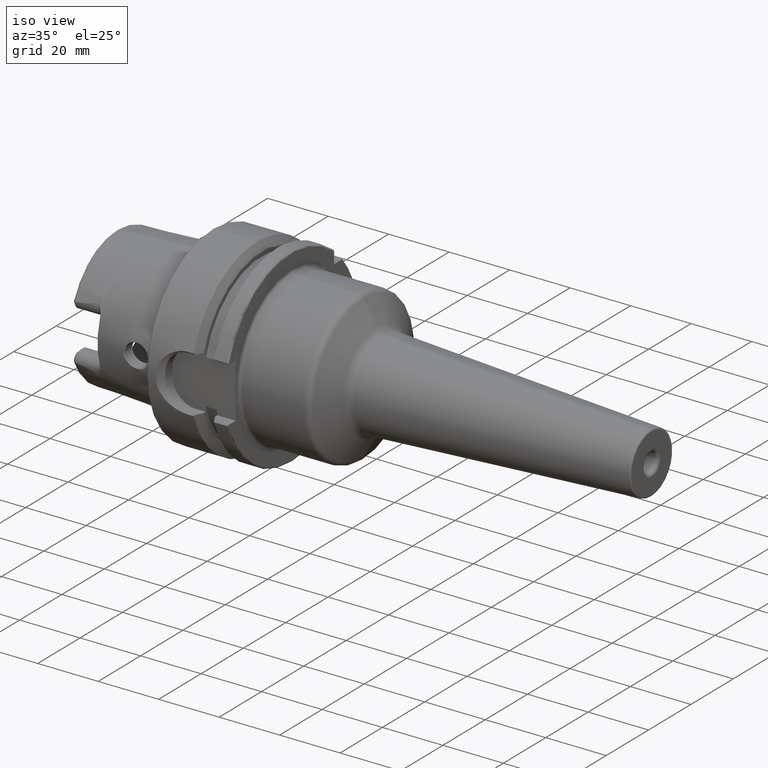
[diagram: clean part render]
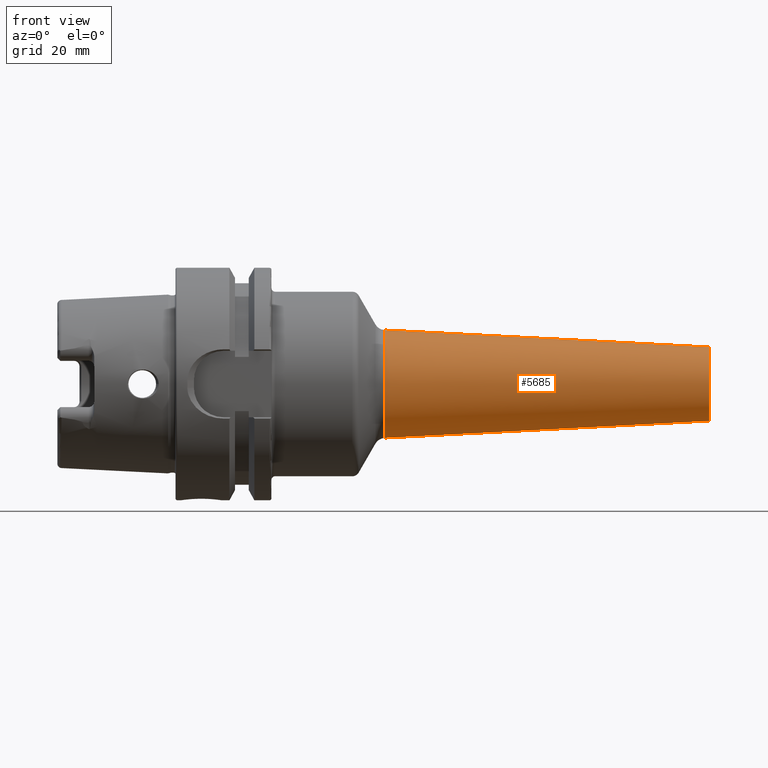
[diagram: tour spotlight — one face highlighted and labeled with its STEP entity id]
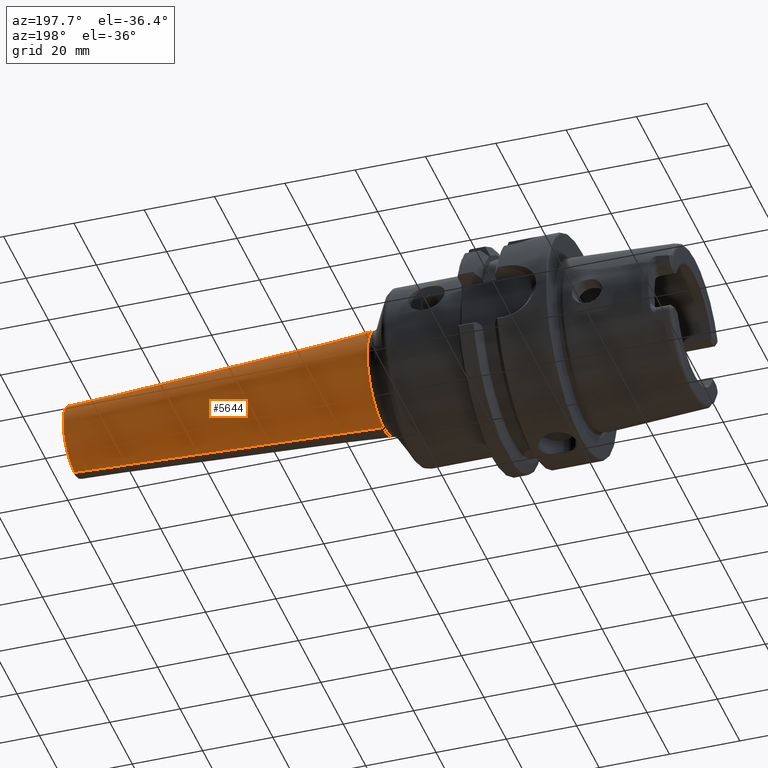
[diagram: tour spotlight — one face highlighted and labeled with its STEP entity id]
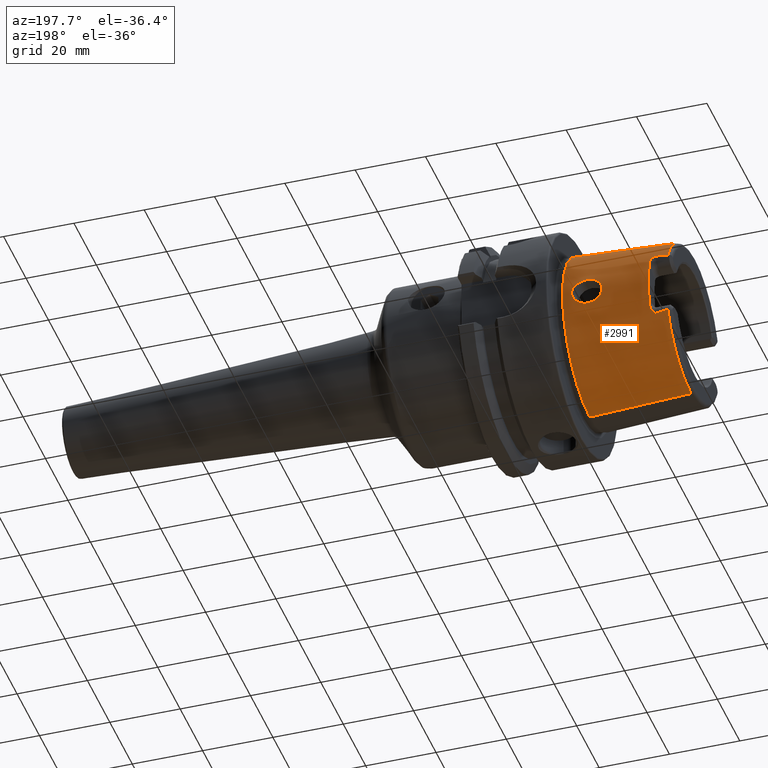
[diagram: tour spotlight — one face highlighted and labeled with its STEP entity id]
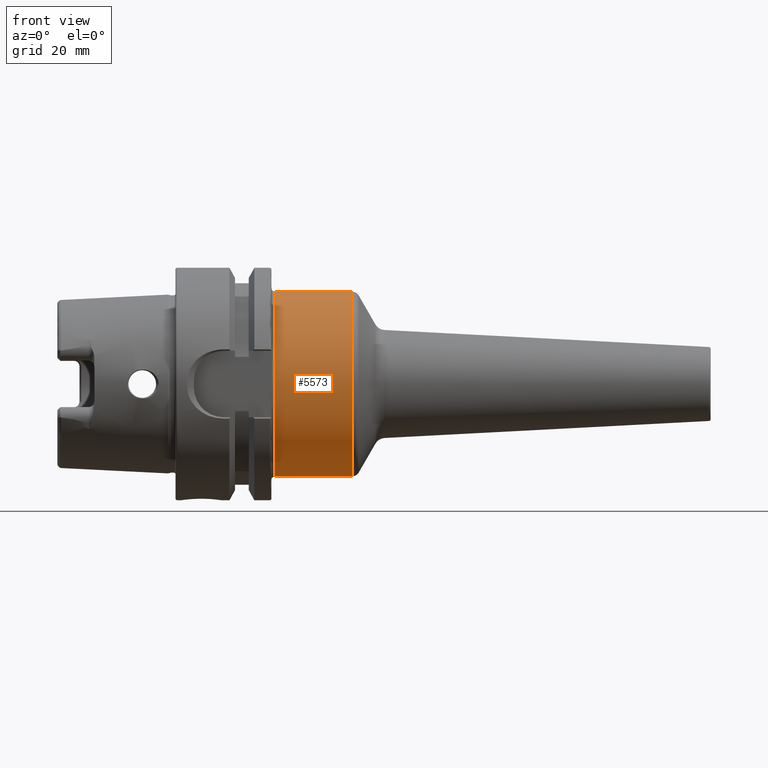
[diagram: tour spotlight — one face highlighted and labeled with its STEP entity id]
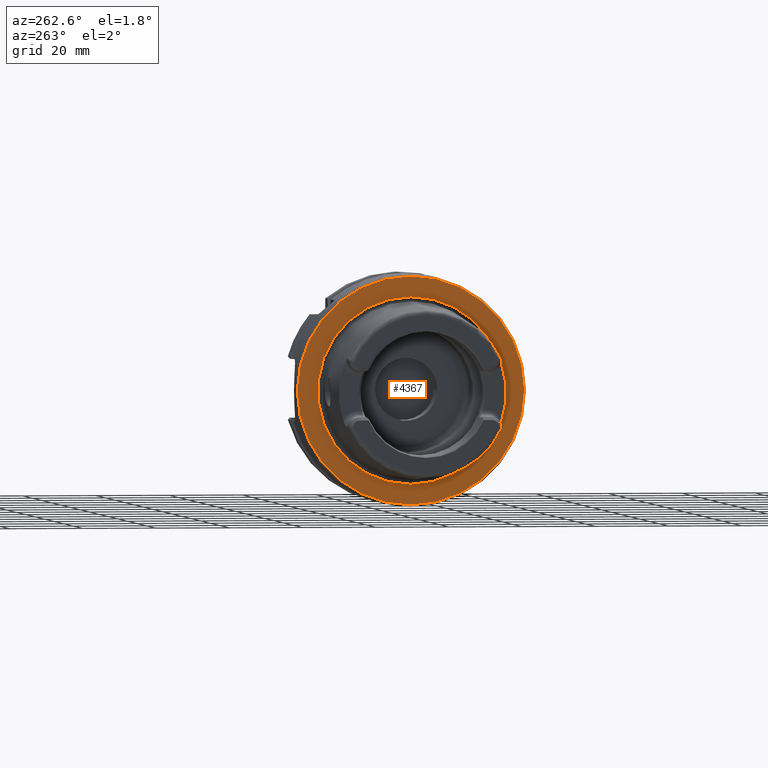
[diagram: tour spotlight — one face highlighted and labeled with its STEP entity id]
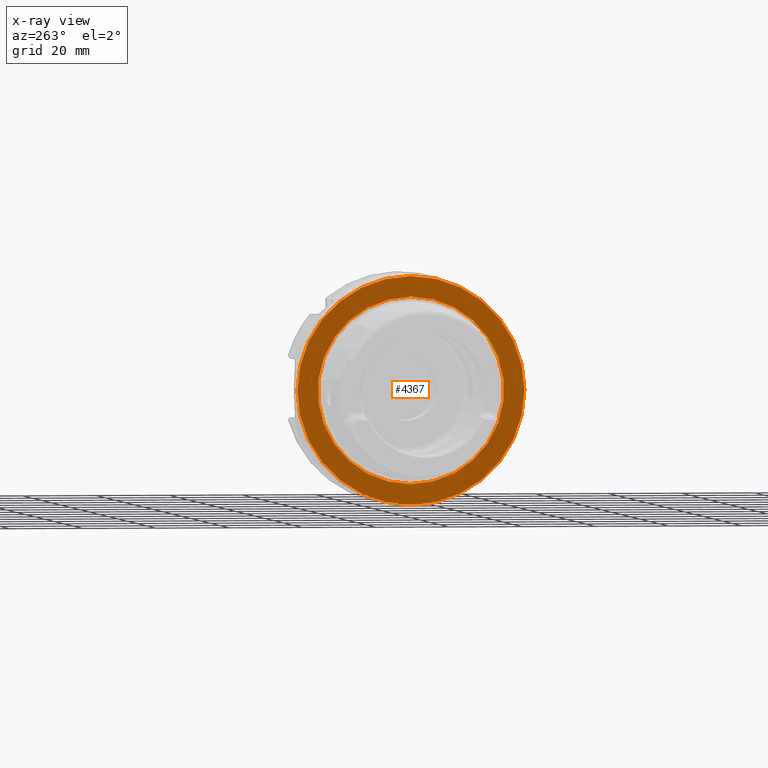
[diagram: x-ray of the same camera — body ghosted, this tour face saturated]
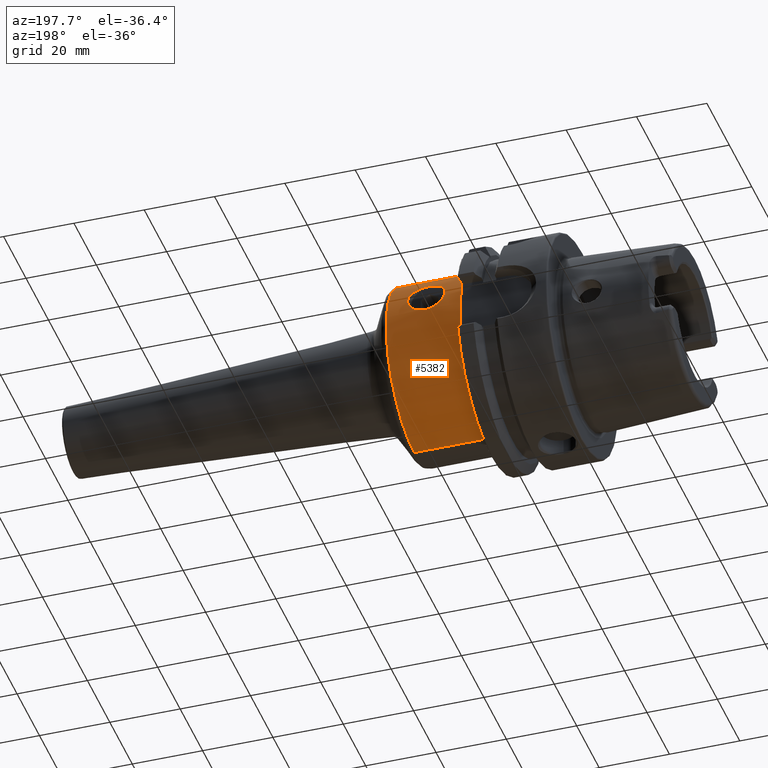
[diagram: tour spotlight — one face highlighted and labeled with its STEP entity id]
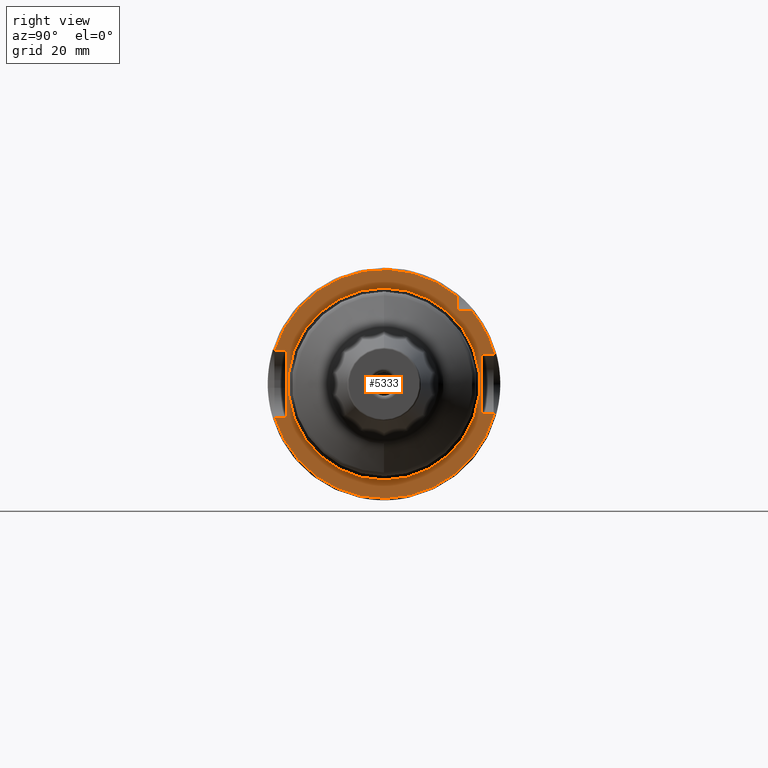
[diagram: tour spotlight — one face highlighted and labeled with its STEP entity id]
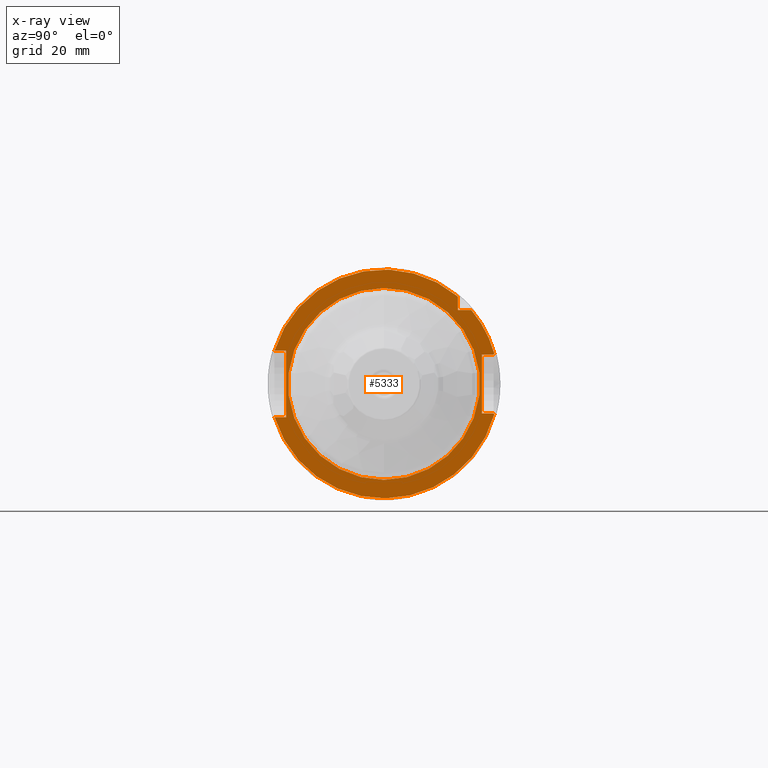
[diagram: x-ray of the same camera — body ghosted, this tour face saturated]
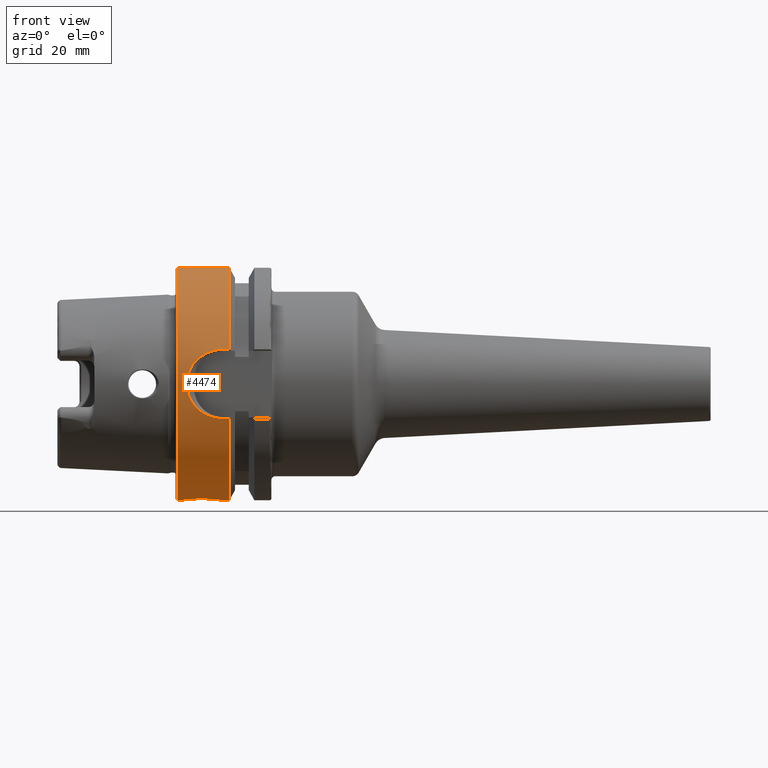
[diagram: tour spotlight — one face highlighted and labeled with its STEP entity id]
A machine part: a face-by-face anatomy tour. The part has 178 B-rep faces; the first image is the clean iso view, then the 8 largest visible faces are spotlighted one at a time (largest first), each with its STEP entity span.

Face 1 — front view, entity #5685. In plain terms, the highlighted conical surface has half-angle 3 deg.
Definition (entity closure, byte-faithful):
#2384=CARTESIAN_POINT('',(1.445261679781E2,0.E0,0.E0));
#2385=DIRECTION('',(-1.E0,0.E0,0.E0));
#2386=DIRECTION('',(0.E0,0.E0,-1.E0));
#2387=AXIS2_PLACEMENT_3D('',#2384,#2385,#2386);
#2389=DIRECTION('',(-9.986295347546E-1,1.666765421369E-12,-5.233595624294E-2));
#2390=VECTOR('',#2389,8.802016175758E1);
#2391=CARTESIAN_POINT('',(1.445261679782E2,-1.503512906937E-10,
-1.002483248402E1));
#2392=LINE('',#2391,#2390);
#2393=CARTESIAN_POINT('',(5.662663479317E1,0.E0,0.E0));
#2394=DIRECTION('',(1.E0,0.E0,0.E0));
#2395=DIRECTION('',(0.E0,0.E0,1.E0));
#2396=AXIS2_PLACEMENT_3D('',#2393,#2394,#2395);
#2398=DIRECTION('',(-9.986295347546E-1,-1.666767408512E-12,5.233595624294E-2));
#2399=VECTOR('',#2398,8.802016175758E1);
#2400=CARTESIAN_POINT('',(1.445261679782E2,1.503509898878E-10,
1.002483248402E1));
#2401=LINE('',#2400,#2399);
#2946=CARTESIAN_POINT('',(5.662663479317E1,0.E0,1.463145181826E1));
#2947=CARTESIAN_POINT('',(5.662663479317E1,0.E0,-1.463145181826E1));
#2948=VERTEX_POINT('',#2946);
#2949=VERTEX_POINT('',#2947);
#2950=CARTESIAN_POINT('',(1.445261679781E2,0.E0,-1.002483248402E1));
#2951=CARTESIAN_POINT('',(1.445261679781E2,0.E0,1.002483248402E1));
#2952=VERTEX_POINT('',#2950);
#2953=VERTEX_POINT('',#2951);
#5674=CARTESIAN_POINT('',(1.005764013856E2,0.E0,0.E0));
#5675=DIRECTION('',(-1.E0,0.E0,0.E0));
#5676=DIRECTION('',(0.E0,0.E0,-1.E0));
#5677=AXIS2_PLACEMENT_3D('',#5674,#5675,#5676);
#5678=CONICAL_SURFACE('',#5677,1.232814215114E1,3.E0);
#5679=ORIENTED_EDGE('',*,*,#5665,.F.);
#5680=ORIENTED_EDGE('',*,*,#5640,.T.);
#5681=ORIENTED_EDGE('',*,*,#5597,.F.);
#5682=ORIENTED_EDGE('',*,*,#5637,.F.);
#5683=EDGE_LOOP('',(#5679,#5680,#5681,#5682));
#5684=FACE_OUTER_BOUND('',#5683,.F.);
#5685=ADVANCED_FACE('',(#5684),#5678,.T.);
#2388=CIRCLE('',#2387,1.002483248402E1);
#2397=CIRCLE('',#2396,1.463145181826E1);
#5597=EDGE_CURVE('',#2948,#2949,#2397,.T.);
#5637=EDGE_CURVE('',#2953,#2948,#2401,.T.);
#5640=EDGE_CURVE('',#2952,#2949,#2392,.T.);
#5665=EDGE_CURVE('',#2952,#2953,#2388,.T.);

Face 2 — auxiliary view, entity #5644. In plain terms, the highlighted conical surface has half-angle 3 deg.
Definition (entity closure, byte-faithful):
#2364=CARTESIAN_POINT('',(1.445261679781E2,0.E0,0.E0));
#2365=DIRECTION('',(-1.E0,0.E0,0.E0));
#2366=DIRECTION('',(0.E0,0.E0,1.E0));
#2367=AXIS2_PLACEMENT_3D('',#2364,#2365,#2366);
#2369=CARTESIAN_POINT('',(5.662663479317E1,0.E0,0.E0));
#2370=DIRECTION('',(1.E0,0.E0,0.E0));
#2371=DIRECTION('',(0.E0,0.E0,-1.E0));
#2372=AXIS2_PLACEMENT_3D('',#2369,#2370,#2371);
#2389=DIRECTION('',(-9.986295347546E-1,1.666765421369E-12,-5.233595624294E-2));
#2390=VECTOR('',#2389,8.802016175758E1);
#2391=CARTESIAN_POINT('',(1.445261679782E2,-1.503512906937E-10,
-1.002483248402E1));
#2392=LINE('',#2391,#2390);
#2398=DIRECTION('',(-9.986295347546E-1,-1.666767408512E-12,5.233595624294E-2));
#2399=VECTOR('',#2398,8.802016175758E1);
#2400=CARTESIAN_POINT('',(1.445261679782E2,1.503509898878E-10,
1.002483248402E1));
#2401=LINE('',#2400,#2399);
#2946=CARTESIAN_POINT('',(5.662663479317E1,0.E0,1.463145181826E1));
#2947=CARTESIAN_POINT('',(5.662663479317E1,0.E0,-1.463145181826E1));
#2948=VERTEX_POINT('',#2946);
#2949=VERTEX_POINT('',#2947);
#2950=CARTESIAN_POINT('',(1.445261679781E2,0.E0,-1.002483248402E1));
#2951=CARTESIAN_POINT('',(1.445261679781E2,0.E0,1.002483248402E1));
#2952=VERTEX_POINT('',#2950);
#2953=VERTEX_POINT('',#2951);
#5630=CARTESIAN_POINT('',(1.005764013856E2,0.E0,0.E0));
#5631=DIRECTION('',(-1.E0,0.E0,0.E0));
#5632=DIRECTION('',(0.E0,0.E0,-1.E0));
#5633=AXIS2_PLACEMENT_3D('',#5630,#5631,#5632);
#5634=CONICAL_SURFACE('',#5633,1.232814215114E1,3.E0);
#5636=ORIENTED_EDGE('',*,*,#5635,.F.);
#5638=ORIENTED_EDGE('',*,*,#5637,.T.);
#5639=ORIENTED_EDGE('',*,*,#5612,.F.);
#5641=ORIENTED_EDGE('',*,*,#5640,.F.);
#5642=EDGE_LOOP('',(#5636,#5638,#5639,#5641));
#5643=FACE_OUTER_BOUND('',#5642,.F.);
#5644=ADVANCED_FACE('',(#5643),#5634,.T.);
#2368=CIRCLE('',#2367,1.002483248402E1);
#2373=CIRCLE('',#2372,1.463145181826E1);
#5612=EDGE_CURVE('',#2949,#2948,#2373,.T.);
#5635=EDGE_CURVE('',#2953,#2952,#2368,.T.);
#5637=EDGE_CURVE('',#2953,#2948,#2401,.T.);
#5640=EDGE_CURVE('',#2952,#2949,#2392,.T.);

Face 3 — auxiliary view, entity #2991. In plain terms, the highlighted conical surface has half-angle 2.868 deg.
Definition (entity closure, byte-faithful):
#2=CARTESIAN_POINT('',(-3.086004333271E1,0.E0,0.E0));
#3=DIRECTION('',(-1.E0,0.E0,0.E0));
#4=DIRECTION('',(0.E0,9.163649919573E-1,-4.003438540993E-1));
#5=AXIS2_PLACEMENT_3D('',#2,#3,#4);
#7=CARTESIAN_POINT('',(-2.000078966146E0,0.E0,0.E0));
#8=DIRECTION('',(-1.E0,0.E0,0.E0));
#9=DIRECTION('',(0.E0,0.E0,1.E0));
#10=AXIS2_PLACEMENT_3D('',#7,#8,#9);
#12=CARTESIAN_POINT('',(-3.086004333271E1,0.E0,0.E0));
#13=DIRECTION('',(-1.E0,0.E0,0.E0));
#14=DIRECTION('',(0.E0,0.E0,1.E0));
#15=AXIS2_PLACEMENT_3D('',#12,#13,#14);
#17=CARTESIAN_POINT('',(-3.086004333271E1,2.086981840766E1,9.117659021249E0));
#18=CARTESIAN_POINT('',(-3.053477016229E1,2.087026407252E1,9.157343468693E0));
#19=CARTESIAN_POINT('',(-2.990731725920E1,2.086951854295E1,9.237138009720E0));
#20=CARTESIAN_POINT('',(-2.903749175968E1,2.086333964170E1,9.358087934639E0));
#21=CARTESIAN_POINT('',(-2.823306039663E1,2.085177035668E1,9.481640423811E0));
#22=CARTESIAN_POINT('',(-2.773735868303E1,2.083999307163E1,9.567019157167E0));
#23=CARTESIAN_POINT('',(-2.75E1,2.083289994314E1,9.610781850025E0));
#25=CARTESIAN_POINT('',(-3.086004333271E1,2.086981840766E1,-9.117659021249E0));
#26=CARTESIAN_POINT('',(-3.053477016229E1,2.087026407252E1,-9.157343468693E0));
#27=CARTESIAN_POINT('',(-2.990731725920E1,2.086951854295E1,-9.237138009720E0));
#28=CARTESIAN_POINT('',(-2.903749175968E1,2.086333964170E1,-9.358087934639E0));
#29=CARTESIAN_POINT('',(-2.823306039663E1,2.085177035668E1,-9.481640423811E0));
#30=CARTESIAN_POINT('',(-2.773735868303E1,2.083999307163E1,-9.567019157167E0));
#31=CARTESIAN_POINT('',(-2.75E1,2.083289994314E1,-9.610781850025E0));
#33=CARTESIAN_POINT('',(-1.304439190524E1,2.366711362744E1,0.E0));
#34=CARTESIAN_POINT('',(-1.304439190524E1,2.366711362744E1,-2.692296203512E-1));
#35=CARTESIAN_POINT('',(-1.298596588633E1,2.366095548437E1,-7.915478808268E-1));
#36=CARTESIAN_POINT('',(-1.273593529021E1,2.363615494345E1,-1.538491121410E0));
#37=CARTESIAN_POINT('',(-1.234085581199E1,2.360161826823E1,-2.213541098239E0));
#38=CARTESIAN_POINT('',(-1.181419542757E1,2.356442533815E1,-2.805250832799E0));
#39=CARTESIAN_POINT('',(-1.117137997799E1,2.353291472613E1,-3.293080560877E0));
#40=CARTESIAN_POINT('',(-1.044411763446E1,2.351584278645E1,-3.653416998785E0));
#41=CARTESIAN_POINT('',(-9.665961713705E0,2.351947741575E1,-3.874611692795E0));
#42=CARTESIAN_POINT('',(-8.868249773196E0,2.354653765362E1,-3.954597009881E0));
#43=CARTESIAN_POINT('',(-8.066538054402E0,2.359739017255E1,-3.894486132971E0));
#44=CARTESIAN_POINT('',(-7.282895667530E0,2.366966238930E1,-3.694792672991E0));
#45=CARTESIAN_POINT('',(-6.526798753436E0,2.376050761714E1,-3.345491144455E0));
#46=CARTESIAN_POINT('',(-5.863814319433E0,2.385701628222E1,-2.868853306938E0));
#47=CARTESIAN_POINT('',(-5.312865344565E0,2.394874241525E1,-2.282242940895E0));
#48=CARTESIAN_POINT('',(-4.894562356430E0,2.402528280422E1,-1.608353345469E0));
#49=CARTESIAN_POINT('',(-4.618382192889E0,2.407904412959E1,-8.401112834544E-1));
#50=CARTESIAN_POINT('',(-4.550876813471E0,2.409262908457E1,-2.877835390342E-1));
#51=CARTESIAN_POINT('',(-4.550876813471E0,2.409262908457E1,0.E0));
#53=CARTESIAN_POINT('',(-4.550876813471E0,2.409262908457E1,0.E0));
#54=CARTESIAN_POINT('',(-4.550876813471E0,2.409262908457E1,2.859611557422E-1));
#55=CARTESIAN_POINT('',(-4.617596309412E0,2.407920413971E1,8.352613928779E-1));
#56=CARTESIAN_POINT('',(-4.890694973026E0,2.402602347294E1,1.599880277375E0));
#57=CARTESIAN_POINT('',(-5.306466792903E0,2.394987071124E1,2.273906799261E0));
#58=CARTESIAN_POINT('',(-5.856510230644E0,2.385815053501E1,2.862665496108E0));
#59=CARTESIAN_POINT('',(-6.521241332787E0,2.376122989035E1,3.342466827978E0));
#60=CARTESIAN_POINT('',(-7.278646414858E0,2.367010677752E1,3.693348295885E0));
#61=CARTESIAN_POINT('',(-8.062694821519E0,2.359768581097E1,3.893886174943E0));
#62=CARTESIAN_POINT('',(-8.864889034770E0,2.354669857096E1,3.954654604967E0));
#63=CARTESIAN_POINT('',(-9.662752662742E0,2.351953711749E1,3.875232791745E0));
#64=CARTESIAN_POINT('',(-1.044126794827E1,2.351581579089E1,3.654504198045E0));
#65=CARTESIAN_POINT('',(-1.116829063931E1,2.353280579750E1,3.294940241881E0));
#66=CARTESIAN_POINT('',(-1.181105545196E1,2.356423840462E1,2.808070161338E0));
#67=CARTESIAN_POINT('',(-1.233792159236E1,2.360138355943E1,2.217544614980E0));
#68=CARTESIAN_POINT('',(-1.273424784845E1,2.363599247778E1,1.542402709130E0));
#69=CARTESIAN_POINT('',(-1.298554429293E1,2.366091077517E1,7.941137450600E-1));
#70=CARTESIAN_POINT('',(-1.304439190524E1,2.366711362744E1,2.702086010916E-1));
#71=CARTESIAN_POINT('',(-1.304439190524E1,2.366711362744E1,0.E0));
#144=CARTESIAN_POINT('',(-2.75E1,2.083289994314E1,-9.610781850025E0));
#145=CARTESIAN_POINT('',(-2.743975062531E1,2.083109947580E1,-9.621890248698E0));
#146=CARTESIAN_POINT('',(-2.731974848713E1,2.083872619074E1,-9.619737940193E0));
#147=CARTESIAN_POINT('',(-2.713788283439E1,2.088499706769E1,-9.541042090458E0));
#148=CARTESIAN_POINT('',(-2.696734572208E1,2.095414112914E1,-9.409321527965E0));
#149=CARTESIAN_POINT('',(-2.680749153758E1,2.103583876480E1,-9.245355378728E0));
#150=CARTESIAN_POINT('',(-2.665257735252E1,2.112843537783E1,-9.051716021862E0));
#151=CARTESIAN_POINT('',(-2.650302698832E1,2.123047210424E1,-8.829512386182E0));
#152=CARTESIAN_POINT('',(-2.636248241751E1,2.133984318010E1,-8.581008391494E0));
#153=CARTESIAN_POINT('',(-2.623108108915E1,2.145913591165E1,-8.296954135832E0));
#154=CARTESIAN_POINT('',(-2.611489180659E1,2.158976731555E1,-7.968405102356E0));
#155=CARTESIAN_POINT('',(-2.602652288189E1,2.173158022596E1,-7.587530024420E0));
#156=CARTESIAN_POINT('',(-2.6E1,2.183164499938E1,-7.296342131266E0));
#157=CARTESIAN_POINT('',(-2.6E1,2.188224159781E1,-7.141305064401E0));
#173=CARTESIAN_POINT('',(-2.6E1,0.E0,0.E0));
#174=DIRECTION('',(1.E0,0.E0,0.E0));
#175=DIRECTION('',(0.E0,9.506556522061E-1,-3.102480151887E-1));
#176=AXIS2_PLACEMENT_3D('',#173,#174,#175);
#713=DIRECTION('',(-9.987474310439E-1,-1.043943068730E-10,-5.003567710383E-2));
#714=VECTOR('',#713,2.889623723507E1);
#715=CARTESIAN_POINT('',(-2.000000627352E0,3.013169918385E-9,2.422041252602E1));
#716=LINE('',#715,#714);
#722=DIRECTION('',(-9.987474310439E-1,1.043954869385E-10,5.003567710383E-2));
#723=VECTOR('',#722,2.889623723507E1);
#724=CARTESIAN_POINT('',(-2.000000627352E0,-3.013171862045E-9,
-2.422041252602E1));
#725=LINE('',#724,#723);
#881=CARTESIAN_POINT('',(-2.6E1,2.188224159781E1,7.141305064400E0));
#882=CARTESIAN_POINT('',(-2.6E1,2.183974716074E1,7.271515653360E0));
#883=CARTESIAN_POINT('',(-2.601871282871E1,2.175468164903E1,7.521324142367E0));
#884=CARTESIAN_POINT('',(-2.608831272694E1,2.162788937119E1,7.867819964950E0));
#885=CARTESIAN_POINT('',(-2.618560132166E1,2.150728532315E1,8.177555427085E0));
#886=CARTESIAN_POINT('',(-2.630091098865E1,2.139363544444E1,8.454351951900E0));
#887=CARTESIAN_POINT('',(-2.642777532615E1,2.128749113051E1,8.701079139516E0));
#888=CARTESIAN_POINT('',(-2.656205230822E1,2.118893349758E1,8.920855574258E0));
#889=CARTESIAN_POINT('',(-2.670233126283E1,2.109762227452E1,9.116811046229E0));
#890=CARTESIAN_POINT('',(-2.684756686438E1,2.101419232942E1,9.289367907590E0));
#891=CARTESIAN_POINT('',(-2.700261207520E1,2.093857757737E1,9.439508455813E0));
#892=CARTESIAN_POINT('',(-2.716024259459E1,2.087834082786E1,9.552833408787E0));
#893=CARTESIAN_POINT('',(-2.733041362146E1,2.083774391445E1,9.620584457154E0));
#894=CARTESIAN_POINT('',(-2.744319606554E1,2.083120243791E1,9.621255000217E0));
#895=CARTESIAN_POINT('',(-2.75E1,2.083289994314E1,9.610781850025E0));
#2535=CARTESIAN_POINT('',(-2.000078966146E0,0.E0,-2.422042115892E1));
#2536=CARTESIAN_POINT('',(-2.000078966146E0,0.E0,2.422042115892E1));
#2537=VERTEX_POINT('',#2535);
#2538=VERTEX_POINT('',#2536);
#2680=CARTESIAN_POINT('',(-2.6E1,2.188224159781E1,-7.141305064400E0));
#2682=VERTEX_POINT('',#2680);
#2684=CARTESIAN_POINT('',(-2.75E1,2.083289994314E1,-9.610781850025E0));
#2686=VERTEX_POINT('',#2684);
#2688=CARTESIAN_POINT('',(-2.75E1,2.083289994314E1,9.610781850025E0));
#2690=VERTEX_POINT('',#2688);
#2692=CARTESIAN_POINT('',(-2.6E1,2.188224159781E1,7.141305064400E0));
#2694=VERTEX_POINT('',#2692);
#2710=CARTESIAN_POINT('',(-3.086004333271E1,0.E0,-2.277456973022E1));
#2712=VERTEX_POINT('',#2710);
#2714=CARTESIAN_POINT('',(-3.086004333271E1,2.086981840766E1,
-9.117659021249E0));
#2715=VERTEX_POINT('',#2714);
#2716=CARTESIAN_POINT('',(-3.086004333271E1,0.E0,2.277456973022E1));
#2717=CARTESIAN_POINT('',(-3.086004333271E1,2.086981840766E1,9.117659021249E0));
#2718=VERTEX_POINT('',#2716);
#2719=VERTEX_POINT('',#2717);
#2798=VERTEX_POINT('',#33);
#2799=VERTEX_POINT('',#51);
#2958=CARTESIAN_POINT('',(-1.643002229390E1,0.E0,0.E0));
#2959=DIRECTION('',(1.E0,0.E0,0.E0));
#2960=DIRECTION('',(0.E0,0.E0,1.E0));
#2961=AXIS2_PLACEMENT_3D('',#2958,#2959,#2960);
#2962=CONICAL_SURFACE('',#2961,2.349749739118E1,2.86805556E0);
#2964=ORIENTED_EDGE('',*,*,#2963,.T.);
#2966=ORIENTED_EDGE('',*,*,#2965,.F.);
#2968=ORIENTED_EDGE('',*,*,#2967,.F.);
#2970=ORIENTED_EDGE('',*,*,#2969,.T.);
#2972=ORIENTED_EDGE('',*,*,#2971,.T.);
#2974=ORIENTED_EDGE('',*,*,#2973,.T.);
#2976=ORIENTED_EDGE('',*,*,#2975,.F.);
#2978=ORIENTED_EDGE('',*,*,#2977,.F.);
#2980=ORIENTED_EDGE('',*,*,#2979,.F.);
#2982=ORIENTED_EDGE('',*,*,#2981,.F.);
#2983=EDGE_LOOP('',(#2964,#2966,#2968,#2970,#2972,#2974,#2976,#2978,#2980,
#2982));
#2984=FACE_OUTER_BOUND('',#2983,.F.);
#2986=ORIENTED_EDGE('',*,*,#2985,.F.);
#2988=ORIENTED_EDGE('',*,*,#2987,.F.);
#2989=EDGE_LOOP('',(#2986,#2988));
#2990=FACE_BOUND('',#2989,.F.);
#2991=ADVANCED_FACE('',(#2984,#2990),#2962,.T.);
#6=CIRCLE('',#5,2.277456973022E1);
#11=CIRCLE('',#10,2.422042115892E1);
#16=CIRCLE('',#15,2.277456973022E1);
#24=B_SPLINE_CURVE_WITH_KNOTS('',3,(#17,#18,#19,#20,#21,#22,#23),.UNSPECIFIED.,
.F.,.F.,(4,1,1,1,4),(0.E0,2.5E-1,5.E-1,7.5E-1,1.E0),.UNSPECIFIED.);
#32=B_SPLINE_CURVE_WITH_KNOTS('',3,(#25,#26,#27,#28,#29,#30,#31),.UNSPECIFIED.,
.F.,.F.,(4,1,1,1,4),(0.E0,2.5E-1,5.E-1,7.5E-1,1.E0),.UNSPECIFIED.);
#52=B_SPLINE_CURVE_WITH_KNOTS('',3,(#33,#34,#35,#36,#37,#38,#39,#40,#41,#42,#43,
#44,#45,#46,#47,#48,#49,#50,#51),.UNSPECIFIED.,.F.,.F.,(4,1,1,1,1,1,1,1,1,1,1,1,
1,1,1,1,4),(0.E0,6.25E-2,1.25E-1,1.875E-1,2.5E-1,3.125E-1,3.75E-1,4.375E-1,
5.E-1,5.625E-1,6.25E-1,6.875E-1,7.5E-1,8.125E-1,8.75E-1,9.375E-1,1.E0),
.UNSPECIFIED.);
#72=B_SPLINE_CURVE_WITH_KNOTS('',3,(#53,#54,#55,#56,#57,#58,#59,#60,#61,#62,#63,
#64,#65,#66,#67,#68,#69,#70,#71),.UNSPECIFIED.,.F.,.F.,(4,1,1,1,1,1,1,1,1,1,1,1,
1,1,1,1,4),(0.E0,6.25E-2,1.25E-1,1.875E-1,2.5E-1,3.125E-1,3.75E-1,4.375E-1,
5.E-1,5.625E-1,6.25E-1,6.875E-1,7.5E-1,8.125E-1,8.75E-1,9.375E-1,1.E0),
.UNSPECIFIED.);
#158=B_SPLINE_CURVE_WITH_KNOTS('',3,(#144,#145,#146,#147,#148,#149,#150,#151,
#152,#153,#154,#155,#156,#157),.UNSPECIFIED.,.F.,.F.,(4,1,1,1,1,1,1,1,1,1,1,4),(
0.E0,9.090909090909E-2,1.818181818182E-1,2.727272727273E-1,3.636363636364E-1,
4.545454545455E-1,5.454545454545E-1,6.363636363636E-1,7.272727272727E-1,
8.181818181818E-1,9.090909090909E-1,1.E0),.UNSPECIFIED.);
#177=CIRCLE('',#176,2.301805237998E1);
#896=B_SPLINE_CURVE_WITH_KNOTS('',3,(#881,#882,#883,#884,#885,#886,#887,#888,
#889,#890,#891,#892,#893,#894,#895),.UNSPECIFIED.,.F.,.F.,(4,1,1,1,1,1,1,1,1,1,
1,1,4),(0.E0,8.333333333333E-2,1.666666666667E-1,2.5E-1,3.333333333333E-1,
4.166666666667E-1,5.E-1,5.833333333333E-1,6.666666666667E-1,7.5E-1,
8.333333333333E-1,9.166666666667E-1,1.E0),.UNSPECIFIED.);
#2963=EDGE_CURVE('',#2715,#2712,#6,.T.);
#2965=EDGE_CURVE('',#2537,#2712,#725,.T.);
#2967=EDGE_CURVE('',#2538,#2537,#11,.T.);
#2969=EDGE_CURVE('',#2538,#2718,#716,.T.);
#2971=EDGE_CURVE('',#2718,#2719,#16,.T.);
#2973=EDGE_CURVE('',#2719,#2690,#24,.T.);
#2975=EDGE_CURVE('',#2694,#2690,#896,.T.);
#2977=EDGE_CURVE('',#2682,#2694,#177,.T.);
#2979=EDGE_CURVE('',#2686,#2682,#158,.T.);
#2981=EDGE_CURVE('',#2715,#2686,#32,.T.);
#2985=EDGE_CURVE('',#2798,#2799,#52,.T.);
#2987=EDGE_CURVE('',#2799,#2798,#72,.T.);

Face 4 — front view, entity #5573. In plain terms, the highlighted cylindrical surface (partial cylindrical patch) has radius 25 mm, axis along (1, 0, 0).
Definition (entity closure, byte-faithful):
#2308=CARTESIAN_POINT('',(4.790823351668E1,0.E0,0.E0));
#2309=DIRECTION('',(-1.E0,0.E0,0.E0));
#2310=DIRECTION('',(0.E0,0.E0,-1.E0));
#2311=AXIS2_PLACEMENT_3D('',#2308,#2309,#2310);
#2313=DIRECTION('',(-1.E0,3.544845097987E-12,0.E0));
#2314=VECTOR('',#2313,2.090823351668E1);
#2315=CARTESIAN_POINT('',(4.790823351668E1,-4.271751971073E-11,-2.5E1));
#2316=LINE('',#2315,#2314);
#2317=CARTESIAN_POINT('',(2.7E1,0.E0,0.E0));
#2318=DIRECTION('',(1.E0,0.E0,0.E0));
#2319=DIRECTION('',(0.E0,0.E0,1.E0));
#2320=AXIS2_PLACEMENT_3D('',#2317,#2318,#2319);
#2322=DIRECTION('',(-1.E0,-3.545111630266E-12,0.E0));
#2323=VECTOR('',#2322,2.090823351668E1);
#2324=CARTESIAN_POINT('',(4.790823351668E1,4.271672039933E-11,2.5E1));
#2325=LINE('',#2324,#2323);
#2930=CARTESIAN_POINT('',(2.7E1,0.E0,2.5E1));
#2931=CARTESIAN_POINT('',(2.7E1,0.E0,-2.5E1));
#2932=VERTEX_POINT('',#2930);
#2933=VERTEX_POINT('',#2931);
#2934=CARTESIAN_POINT('',(4.790823351668E1,0.E0,-2.5E1));
#2935=CARTESIAN_POINT('',(4.790823351668E1,0.E0,2.5E1));
#2936=VERTEX_POINT('',#2934);
#2937=VERTEX_POINT('',#2935);
#5562=CARTESIAN_POINT('',(2.005E1,0.E0,0.E0));
#5563=DIRECTION('',(1.E0,0.E0,0.E0));
#5564=DIRECTION('',(0.E0,0.E0,1.E0));
#5565=AXIS2_PLACEMENT_3D('',#5562,#5563,#5564);
#5566=CYLINDRICAL_SURFACE('',#5565,2.5E1);
#5567=ORIENTED_EDGE('',*,*,#5553,.F.);
#5568=ORIENTED_EDGE('',*,*,#5372,.T.);
#5569=ORIENTED_EDGE('',*,*,#5342,.F.);
#5570=ORIENTED_EDGE('',*,*,#5369,.F.);
#5571=EDGE_LOOP('',(#5567,#5568,#5569,#5570));
#5572=FACE_OUTER_BOUND('',#5571,.F.);
#5573=ADVANCED_FACE('',(#5572),#5566,.T.);
#2312=CIRCLE('',#2311,2.5E1);
#2321=CIRCLE('',#2320,2.5E1);
#5342=EDGE_CURVE('',#2932,#2933,#2321,.T.);
#5369=EDGE_CURVE('',#2937,#2932,#2325,.T.);
#5372=EDGE_CURVE('',#2936,#2933,#2316,.T.);
#5553=EDGE_CURVE('',#2936,#2937,#2312,.T.);

Face 5 — auxiliary view, entity #4367. An x-ray twin of the same camera follows (body ghosted, this face saturated) — the face is partly hidden behind the body. In plain terms, the highlighted planar face has unit normal (1, 0, 0).
Definition (entity closure, byte-faithful):
#1257=CARTESIAN_POINT('',(0.E0,0.E0,0.E0));
#1258=DIRECTION('',(1.E0,0.E0,0.E0));
#1259=DIRECTION('',(0.E0,0.E0,-1.E0));
#1260=AXIS2_PLACEMENT_3D('',#1257,#1258,#1259);
#1262=CARTESIAN_POINT('',(0.E0,0.E0,0.E0));
#1263=DIRECTION('',(1.E0,0.E0,0.E0));
#1264=DIRECTION('',(0.E0,0.E0,1.E0));
#1265=AXIS2_PLACEMENT_3D('',#1262,#1263,#1264);
#1267=CARTESIAN_POINT('',(0.E0,0.E0,0.E0));
#1268=DIRECTION('',(-1.E0,0.E0,0.E0));
#1269=DIRECTION('',(0.E0,0.E0,1.E0));
#1270=AXIS2_PLACEMENT_3D('',#1267,#1268,#1269);
#1272=CARTESIAN_POINT('',(0.E0,0.E0,0.E0));
#1273=DIRECTION('',(-1.E0,0.E0,0.E0));
#1274=DIRECTION('',(0.E0,0.E0,-1.E0));
#1275=AXIS2_PLACEMENT_3D('',#1272,#1273,#1274);
#2527=CARTESIAN_POINT('',(0.E0,0.E0,-2.54204E1));
#2528=CARTESIAN_POINT('',(0.E0,0.E0,2.54204E1));
#2529=VERTEX_POINT('',#2527);
#2530=VERTEX_POINT('',#2528);
#2856=CARTESIAN_POINT('',(0.E0,0.E0,3.1E1));
#2857=CARTESIAN_POINT('',(0.E0,1.138921523207E-14,-3.1E1));
#2858=VERTEX_POINT('',#2856);
#2859=VERTEX_POINT('',#2857);
#4352=CARTESIAN_POINT('',(0.E0,0.E0,0.E0));
#4353=DIRECTION('',(1.E0,0.E0,0.E0));
#4354=DIRECTION('',(0.E0,0.E0,1.E0));
#4355=AXIS2_PLACEMENT_3D('',#4352,#4353,#4354);
#4356=PLANE('',#4355);
#4358=ORIENTED_EDGE('',*,*,#4357,.F.);
#4360=ORIENTED_EDGE('',*,*,#4359,.F.);
#4361=EDGE_LOOP('',(#4358,#4360));
#4362=FACE_OUTER_BOUND('',#4361,.F.);
#4363=ORIENTED_EDGE('',*,*,#4308,.F.);
#4364=ORIENTED_EDGE('',*,*,#4293,.F.);
#4365=EDGE_LOOP('',(#4363,#4364));
#4366=FACE_BOUND('',#4365,.F.);
#4367=ADVANCED_FACE('',(#4362,#4366),#4356,.F.);
#1261=CIRCLE('',#1260,2.54204E1);
#1266=CIRCLE('',#1265,2.54204E1);
#1271=CIRCLE('',#1270,3.1E1);
#1276=CIRCLE('',#1275,3.1E1);
#4293=EDGE_CURVE('',#2530,#2529,#1266,.T.);
#4308=EDGE_CURVE('',#2529,#2530,#1261,.T.);
#4357=EDGE_CURVE('',#2858,#2859,#1271,.T.);
#4359=EDGE_CURVE('',#2859,#2858,#1276,.T.);

Face 6 — auxiliary view, entity #5382. In plain terms, the highlighted cylindrical surface (partial cylindrical patch) has radius 25 mm, axis along (1, 0, 0).
Definition (entity closure, byte-faithful):
#2162=CARTESIAN_POINT('',(4.225E1,2.351063589102E1,8.5E0));
#2163=CARTESIAN_POINT('',(4.225E1,2.337213120763E1,8.883098021203E0));
#2164=CARTESIAN_POINT('',(4.216775736558E1,2.308416884894E1,9.621530987321E0));
#2165=CARTESIAN_POINT('',(4.182569267607E1,2.262211103256E1,1.066022689241E1));
#2166=CARTESIAN_POINT('',(4.128788314491E1,2.215790550482E1,1.159072387112E1));
#2167=CARTESIAN_POINT('',(4.058209900161E1,2.172028837232E1,1.238804117973E1));
#2168=CARTESIAN_POINT('',(3.970850989487E1,2.133239682940E1,1.304123037391E1));
#2169=CARTESIAN_POINT('',(3.870875485517E1,2.103858240691E1,1.350693037077E1));
#2170=CARTESIAN_POINT('',(3.757851495730E1,2.087230595961E1,1.376046683896E1));
#2171=CARTESIAN_POINT('',(3.642913041389E1,2.087162216663E1,1.376148932155E1));
#2172=CARTESIAN_POINT('',(3.529325547258E1,2.103773903975E1,1.350827288928E1));
#2173=CARTESIAN_POINT('',(3.428479308811E1,2.133450367806E1,1.303788677827E1));
#2174=CARTESIAN_POINT('',(3.340821649819E1,2.172523525713E1,1.237950735819E1));
#2175=CARTESIAN_POINT('',(3.270291521649E1,2.216466210242E1,1.157782876519E1));
#2176=CARTESIAN_POINT('',(3.216996249307E1,2.262705987030E1,1.064956191347E1));
#2177=CARTESIAN_POINT('',(3.183124881749E1,2.308670863408E1,9.615210082571E0));
#2178=CARTESIAN_POINT('',(3.175E1,2.337296972828E1,8.880778709003E0));
#2179=CARTESIAN_POINT('',(3.175E1,2.351063589102E1,8.5E0));
#2181=CARTESIAN_POINT('',(3.175E1,2.351063589102E1,8.5E0));
#2182=CARTESIAN_POINT('',(3.175E1,2.366407812196E1,8.075585362125E0));
#2183=CARTESIAN_POINT('',(3.184944877602E1,2.393754529883E1,7.248821620126E0));
#2184=CARTESIAN_POINT('',(3.230105730532E1,2.426810219099E1,6.043354825141E0));
#2185=CARTESIAN_POINT('',(3.302468304813E1,2.450197901458E1,4.995849804739E0));
#2186=CARTESIAN_POINT('',(3.395664759636E1,2.465532267309E1,4.159021658095E0));
#2187=CARTESIAN_POINT('',(3.511537142846E1,2.474942515394E1,3.540789171887E0));
#2188=CARTESIAN_POINT('',(3.638252575050E1,2.478971921564E1,3.235933764396E0));
#2189=CARTESIAN_POINT('',(3.762491149638E1,2.478957808896E1,3.237049037952E0));
#2190=CARTESIAN_POINT('',(3.888797623105E1,2.474920389602E1,3.542303221245E0));
#2191=CARTESIAN_POINT('',(4.004701711520E1,2.465499378940E1,4.161178542403E0));
#2192=CARTESIAN_POINT('',(4.098108312601E1,2.450068642455E1,5.002323280681E0));
#2193=CARTESIAN_POINT('',(4.170034789796E1,2.426702313433E1,6.047306686211E0));
#2194=CARTESIAN_POINT('',(4.214992681261E1,2.393799015450E1,7.247167587907E0));
#2195=CARTESIAN_POINT('',(4.225E1,2.366440525221E1,8.074680533855E0));
#2196=CARTESIAN_POINT('',(4.225E1,2.351063589102E1,8.5E0));
#2198=CARTESIAN_POINT('',(4.790823351668E1,0.E0,0.E0));
#2199=DIRECTION('',(-1.E0,0.E0,0.E0));
#2200=DIRECTION('',(0.E0,0.E0,1.E0));
#2201=AXIS2_PLACEMENT_3D('',#2198,#2199,#2200);
#2203=CARTESIAN_POINT('',(2.7E1,0.E0,0.E0));
#2204=DIRECTION('',(1.E0,0.E0,0.E0));
#2205=DIRECTION('',(0.E0,0.E0,-1.E0));
#2206=AXIS2_PLACEMENT_3D('',#2203,#2204,#2205);
#2313=DIRECTION('',(-1.E0,3.544845097987E-12,0.E0));
#2314=VECTOR('',#2313,2.090823351668E1);
#2315=CARTESIAN_POINT('',(4.790823351668E1,-4.271751971073E-11,-2.5E1));
#2316=LINE('',#2315,#2314);
#2322=DIRECTION('',(-1.E0,-3.545111630266E-12,0.E0));
#2323=VECTOR('',#2322,2.090823351668E1);
#2324=CARTESIAN_POINT('',(4.790823351668E1,4.271672039933E-11,2.5E1));
#2325=LINE('',#2324,#2323);
#2900=VERTEX_POINT('',#2162);
#2901=VERTEX_POINT('',#2179);
#2930=CARTESIAN_POINT('',(2.7E1,0.E0,2.5E1));
#2931=CARTESIAN_POINT('',(2.7E1,0.E0,-2.5E1));
#2932=VERTEX_POINT('',#2930);
#2933=VERTEX_POINT('',#2931);
#2934=CARTESIAN_POINT('',(4.790823351668E1,0.E0,-2.5E1));
#2935=CARTESIAN_POINT('',(4.790823351668E1,0.E0,2.5E1));
#2936=VERTEX_POINT('',#2934);
#2937=VERTEX_POINT('',#2935);
#5362=CARTESIAN_POINT('',(2.005E1,0.E0,0.E0));
#5363=DIRECTION('',(1.E0,0.E0,0.E0));
#5364=DIRECTION('',(0.E0,0.E0,1.E0));
#5365=AXIS2_PLACEMENT_3D('',#5362,#5363,#5364);
#5366=CYLINDRICAL_SURFACE('',#5365,2.5E1);
#5368=ORIENTED_EDGE('',*,*,#5367,.F.);
#5370=ORIENTED_EDGE('',*,*,#5369,.T.);
#5371=ORIENTED_EDGE('',*,*,#5356,.F.);
#5373=ORIENTED_EDGE('',*,*,#5372,.F.);
#5374=EDGE_LOOP('',(#5368,#5370,#5371,#5373));
#5375=FACE_OUTER_BOUND('',#5374,.F.);
#5377=ORIENTED_EDGE('',*,*,#5376,.F.);
#5379=ORIENTED_EDGE('',*,*,#5378,.F.);
#5380=EDGE_LOOP('',(#5377,#5379));
#5381=FACE_BOUND('',#5380,.F.);
#5382=ADVANCED_FACE('',(#5375,#5381),#5366,.T.);
#2180=B_SPLINE_CURVE_WITH_KNOTS('',3,(#2162,#2163,#2164,#2165,#2166,#2167,#2168,
#2169,#2170,#2171,#2172,#2173,#2174,#2175,#2176,#2177,#2178,#2179),
.UNSPECIFIED.,.F.,.F.,(4,1,1,1,1,1,1,1,1,1,1,1,1,1,1,4),(0.E0,6.666666666667E-2,
1.333333333333E-1,2.E-1,2.666666666667E-1,3.333333333333E-1,4.E-1,
4.666666666667E-1,5.333333333333E-1,6.E-1,6.666666666667E-1,7.333333333333E-1,
8.E-1,8.666666666667E-1,9.333333333333E-1,1.E0),.UNSPECIFIED.);
#2197=B_SPLINE_CURVE_WITH_KNOTS('',3,(#2181,#2182,#2183,#2184,#2185,#2186,#2187,
#2188,#2189,#2190,#2191,#2192,#2193,#2194,#2195,#2196),.UNSPECIFIED.,.F.,.F.,(4,
1,1,1,1,1,1,1,1,1,1,1,1,4),(0.E0,7.692307692308E-2,1.538461538462E-1,
2.307692307692E-1,3.076923076923E-1,3.846153846154E-1,4.615384615385E-1,
5.384615384615E-1,6.153846153846E-1,6.923076923077E-1,7.692307692308E-1,
8.461538461538E-1,9.230769230769E-1,1.E0),.UNSPECIFIED.);
#2202=CIRCLE('',#2201,2.5E1);
#2207=CIRCLE('',#2206,2.5E1);
#5356=EDGE_CURVE('',#2933,#2932,#2207,.T.);
#5367=EDGE_CURVE('',#2937,#2936,#2202,.T.);
#5369=EDGE_CURVE('',#2937,#2932,#2325,.T.);
#5372=EDGE_CURVE('',#2936,#2933,#2316,.T.);
#5376=EDGE_CURVE('',#2900,#2901,#2180,.T.);
#5378=EDGE_CURVE('',#2901,#2900,#2197,.T.);

Face 7 — right view, entity #5333. An x-ray twin of the same camera follows (body ghosted, this face saturated) — the face is partly hidden behind the body. In plain terms, the highlighted planar face has unit normal (1, 0, 0).
Definition (entity closure, byte-faithful):
#1408=CARTESIAN_POINT('',(2.6E1,0.E0,0.E0));
#1409=DIRECTION('',(1.E0,0.E0,0.E0));
#1410=DIRECTION('',(0.E0,-9.569288370446E-1,-2.903225806452E-1));
#1411=AXIS2_PLACEMENT_3D('',#1408,#1409,#1410);
#1673=CARTESIAN_POINT('',(2.6E1,2.989671887754E1,-8.196718877539E0));
#1777=CARTESIAN_POINT('',(2.6E1,-2.966479394838E1,9.E0));
#1792=CARTESIAN_POINT('',(2.6E1,0.E0,0.E0));
#1793=DIRECTION('',(1.E0,0.E0,0.E0));
#1794=DIRECTION('',(0.E0,6.451612903226E-1,7.640464053114E-1));
#1795=AXIS2_PLACEMENT_3D('',#1792,#1793,#1794);
#1813=CARTESIAN_POINT('',(2.6E1,2.E1,2.368543856465E1));
#1823=CARTESIAN_POINT('',(2.6E1,2.368543856465E1,2.E1));
#1837=CARTESIAN_POINT('',(2.6E1,0.E0,0.E0));
#1838=DIRECTION('',(1.E0,0.E0,0.E0));
#1839=DIRECTION('',(0.E0,9.644102863722E-1,2.644102863722E-1));
#1840=AXIS2_PLACEMENT_3D('',#1837,#1838,#1839);
#1849=CARTESIAN_POINT('',(2.6E1,2.989671887754E1,8.196718877539E0));
#1969=CARTESIAN_POINT('',(2.6E1,-2.966479394838E1,-9.E0));
#2102=DIRECTION('',(0.E0,1.E0,0.E0));
#2103=VECTOR('',#2102,3.164793948383E0);
#2104=CARTESIAN_POINT('',(2.6E1,-2.966479394838E1,-9.E0));
#2105=LINE('',#2104,#2103);
#2106=DIRECTION('',(0.E0,0.E0,1.E0));
#2107=VECTOR('',#2106,1.8E1);
#2108=CARTESIAN_POINT('',(2.6E1,-2.65E1,-9.E0));
#2109=LINE('',#2108,#2107);
#2110=DIRECTION('',(0.E0,1.E0,0.E0));
#2111=VECTOR('',#2110,3.164793948383E0);
#2112=CARTESIAN_POINT('',(2.6E1,-2.966479394838E1,9.E0));
#2113=LINE('',#2112,#2111);
#2114=DIRECTION('',(0.E0,0.E0,-1.E0));
#2115=VECTOR('',#2114,3.685438564654E0);
#2116=CARTESIAN_POINT('',(2.6E1,2.E1,2.368543856465E1));
#2117=LINE('',#2116,#2115);
#2118=DIRECTION('',(0.E0,-1.E0,0.E0));
#2119=VECTOR('',#2118,3.685438564654E0);
#2120=CARTESIAN_POINT('',(2.6E1,2.368543856465E1,2.E1));
#2121=LINE('',#2120,#2119);
#2122=DIRECTION('',(0.E0,-7.071067811866E-1,-7.071067811865E-1));
#2123=VECTOR('',#2122,2.782025045905E-1);
#2124=CARTESIAN_POINT('',(2.6E1,2.989671887754E1,8.196718877539E0));
#2125=LINE('',#2124,#2123);
#2126=DIRECTION('',(0.E0,-1.E0,0.E0));
#2127=VECTOR('',#2126,3.2E0);
#2128=CARTESIAN_POINT('',(2.6E1,2.97E1,8.E0));
#2129=LINE('',#2128,#2127);
#2130=DIRECTION('',(0.E0,0.E0,1.E0));
#2131=VECTOR('',#2130,1.6E1);
#2132=CARTESIAN_POINT('',(2.6E1,2.65E1,-8.E0));
#2133=LINE('',#2132,#2131);
#2134=DIRECTION('',(0.E0,-1.E0,0.E0));
#2135=VECTOR('',#2134,3.2E0);
#2136=CARTESIAN_POINT('',(2.6E1,2.97E1,-8.E0));
#2137=LINE('',#2136,#2135);
#2138=DIRECTION('',(0.E0,-7.071067811865E-1,7.071067811865E-1));
#2139=VECTOR('',#2138,2.782025045903E-1);
#2140=CARTESIAN_POINT('',(2.6E1,2.989671887754E1,-8.196718877539E0));
#2141=LINE('',#2140,#2139);
#2142=CARTESIAN_POINT('',(2.6E1,0.E0,0.E0));
#2143=DIRECTION('',(1.E0,0.E0,0.E0));
#2144=DIRECTION('',(0.E0,0.E0,1.E0));
#2145=AXIS2_PLACEMENT_3D('',#2142,#2143,#2144);
#2147=CARTESIAN_POINT('',(2.6E1,0.E0,0.E0));
#2148=DIRECTION('',(1.E0,0.E0,0.E0));
#2149=DIRECTION('',(0.E0,0.E0,-1.E0));
#2150=AXIS2_PLACEMENT_3D('',#2147,#2148,#2149);
#2547=CARTESIAN_POINT('',(2.6E1,2.65E1,-8.E0));
#2548=CARTESIAN_POINT('',(2.6E1,2.65E1,8.E0));
#2549=VERTEX_POINT('',#2547);
#2550=VERTEX_POINT('',#2548);
#2579=CARTESIAN_POINT('',(2.6E1,-2.65E1,-9.E0));
#2580=CARTESIAN_POINT('',(2.6E1,-2.65E1,9.E0));
#2581=VERTEX_POINT('',#2579);
#2582=VERTEX_POINT('',#2580);
#2637=CARTESIAN_POINT('',(2.6E1,2.E1,2.E1));
#2638=VERTEX_POINT('',#2637);
#2850=CARTESIAN_POINT('',(2.6E1,2.97E1,-8.E0));
#2851=VERTEX_POINT('',#2850);
#2852=CARTESIAN_POINT('',(2.6E1,2.97E1,8.E0));
#2853=VERTEX_POINT('',#2852);
#2866=VERTEX_POINT('',#1969);
#2867=VERTEX_POINT('',#1673);
#2870=VERTEX_POINT('',#1849);
#2871=VERTEX_POINT('',#1823);
#2874=VERTEX_POINT('',#1813);
#2875=VERTEX_POINT('',#1777);
#2926=CARTESIAN_POINT('',(2.6E1,0.E0,2.6E1));
#2927=CARTESIAN_POINT('',(2.6E1,0.E0,-2.6E1));
#2928=VERTEX_POINT('',#2926);
#2929=VERTEX_POINT('',#2927);
#5307=CARTESIAN_POINT('',(2.6E1,0.E0,0.E0));
#5308=DIRECTION('',(1.E0,0.E0,0.E0));
#5309=DIRECTION('',(0.E0,0.E0,1.E0));
#5310=AXIS2_PLACEMENT_3D('',#5307,#5308,#5309);
#5311=PLANE('',#5310);
#5312=ORIENTED_EDGE('',*,*,#4485,.F.);
#5313=ORIENTED_EDGE('',*,*,#5209,.T.);
#5314=ORIENTED_EDGE('',*,*,#4870,.T.);
#5315=ORIENTED_EDGE('',*,*,#4922,.F.);
#5316=ORIENTED_EDGE('',*,*,#4941,.F.);
#5317=ORIENTED_EDGE('',*,*,#4976,.T.);
#5318=ORIENTED_EDGE('',*,*,#5013,.F.);
#5319=ORIENTED_EDGE('',*,*,#5032,.F.);
#5320=ORIENTED_EDGE('',*,*,#5063,.T.);
#5321=ORIENTED_EDGE('',*,*,#5289,.T.);
#5322=ORIENTED_EDGE('',*,*,#5108,.F.);
#5323=ORIENTED_EDGE('',*,*,#4801,.F.);
#5324=ORIENTED_EDGE('',*,*,#4769,.F.);
#5325=EDGE_LOOP('',(#5312,#5313,#5314,#5315,#5316,#5317,#5318,#5319,#5320,#5321,
#5322,#5323,#5324));
#5326=FACE_OUTER_BOUND('',#5325,.F.);
#5328=ORIENTED_EDGE('',*,*,#5327,.T.);
#5330=ORIENTED_EDGE('',*,*,#5329,.T.);
#5331=EDGE_LOOP('',(#5328,#5330));
#5332=FACE_BOUND('',#5331,.F.);
#5333=ADVANCED_FACE('',(#5326,#5332),#5311,.T.);
#1412=CIRCLE('',#1411,3.1E1);
#1796=CIRCLE('',#1795,3.1E1);
#1841=CIRCLE('',#1840,3.1E1);
#2146=CIRCLE('',#2145,2.6E1);
#2151=CIRCLE('',#2150,2.6E1);
#4485=EDGE_CURVE('',#2866,#2867,#1412,.T.);
#4769=EDGE_CURVE('',#2867,#2851,#2141,.T.);
#4801=EDGE_CURVE('',#2851,#2549,#2137,.T.);
#4870=EDGE_CURVE('',#2581,#2582,#2109,.T.);
#4922=EDGE_CURVE('',#2875,#2582,#2113,.T.);
#4941=EDGE_CURVE('',#2874,#2875,#1796,.T.);
#4976=EDGE_CURVE('',#2874,#2638,#2117,.T.);
#5013=EDGE_CURVE('',#2871,#2638,#2121,.T.);
#5032=EDGE_CURVE('',#2870,#2871,#1841,.T.);
#5063=EDGE_CURVE('',#2870,#2853,#2125,.T.);
#5108=EDGE_CURVE('',#2549,#2550,#2133,.T.);
#5209=EDGE_CURVE('',#2866,#2581,#2105,.T.);
#5289=EDGE_CURVE('',#2853,#2550,#2129,.T.);
#5327=EDGE_CURVE('',#2928,#2929,#2146,.T.);
#5329=EDGE_CURVE('',#2929,#2928,#2151,.T.);

Face 8 — front view, entity #4474. In plain terms, the highlighted cylindrical surface (partial cylindrical patch) has radius 31.5 mm, axis along (1, 0, 0).
Definition (entity closure, byte-faithful):
#1311=CARTESIAN_POINT('',(5.E-1,0.E0,0.E0));
#1312=DIRECTION('',(-1.E0,0.E0,0.E0));
#1313=DIRECTION('',(0.E0,0.E0,-1.E0));
#1314=AXIS2_PLACEMENT_3D('',#1311,#1312,#1313);
#1316=DIRECTION('',(-1.E0,-1.152682623977E-12,0.E0));
#1317=VECTOR('',#1316,1.412250090457E1);
#1318=CARTESIAN_POINT('',(1.462250090457E1,0.E0,3.15E1));
#1319=LINE('',#1318,#1317);
#1320=CARTESIAN_POINT('',(1.462250090457E1,0.E0,0.E0));
#1321=DIRECTION('',(1.E0,0.E0,0.E0));
#1322=DIRECTION('',(0.E0,0.E0,1.E0));
#1323=AXIS2_PLACEMENT_3D('',#1320,#1321,#1322);
#1325=DIRECTION('',(1.E0,0.E0,0.E0));
#1326=VECTOR('',#1325,1.622500904567E0);
#1327=CARTESIAN_POINT('',(1.3E1,-3.007314630073E1,9.373146300730E0));
#1328=LINE('',#1327,#1326);
#1329=CARTESIAN_POINT('',(3.215877017138E0,-3.148412298286E1,1.E0));
#1330=CARTESIAN_POINT('',(3.229667999164E0,-3.147033200084E1,1.434196974159E0));
#1331=CARTESIAN_POINT('',(3.331305148110E0,-3.142562614716E1,2.280557906877E0));
#1332=CARTESIAN_POINT('',(3.689639209254E0,-3.131261894329E1,3.497824814117E0));
#1333=CARTESIAN_POINT('',(4.224387561762E0,-3.116591969202E1,4.617731549331E0));
#1334=CARTESIAN_POINT('',(4.908842568303E0,-3.099748287679E1,5.632070943113E0));
#1335=CARTESIAN_POINT('',(5.712482050064E0,-3.082045350516E1,6.526140660742E0));
#1336=CARTESIAN_POINT('',(6.610248790574E0,-3.064607991101E1,7.296749719208E0));
#1337=CARTESIAN_POINT('',(7.571522800308E0,-3.048524436851E1,7.938452155490E0));
#1338=CARTESIAN_POINT('',(8.586678709411E0,-3.034375148093E1,8.460694722024E0));
#1339=CARTESIAN_POINT('',(9.645764018389E0,-3.022707288446E1,8.866638984176E0));
#1340=CARTESIAN_POINT('',(1.074128466146E1,-3.013966717822E1,9.158034230836E0));
#1341=CARTESIAN_POINT('',(1.186302386205E1,-3.008546433696E1,9.333758812896E0));
#1342=CARTESIAN_POINT('',(1.261911814478E1,-3.007314630073E1,9.373146300730E0));
#1343=CARTESIAN_POINT('',(1.3E1,-3.007314630073E1,9.373146300730E0));
#1345=CARTESIAN_POINT('',(3.215877017138E0,-3.148412298286E1,1.E0));
#1346=CARTESIAN_POINT('',(3.194702323244E0,-3.150529767676E1,
3.333333333333E-1));
#1347=CARTESIAN_POINT('',(3.194702323244E0,-3.150529767676E1,
-3.333333333333E-1));
#1348=CARTESIAN_POINT('',(3.215877017138E0,-3.148412298286E1,-1.E0));
#1350=CARTESIAN_POINT('',(1.3E1,-3.007314630073E1,-9.373146300730E0));
#1351=CARTESIAN_POINT('',(1.261853332120E1,-3.007314630073E1,
-9.373146300730E0));
#1352=CARTESIAN_POINT('',(1.186054965003E1,-3.008548964654E1,
-9.333679878844E0));
#1353=CARTESIAN_POINT('',(1.073214946153E1,-3.014018055062E1,
-9.156365746563E0));
#1354=CARTESIAN_POINT('',(9.631145388051E0,-3.022842683235E1,
-8.862067281056E0));
#1355=CARTESIAN_POINT('',(8.571278418516E0,-3.034570143073E1,
-8.453719776647E0));
#1356=CARTESIAN_POINT('',(7.561968874510E0,-3.048678333923E1,
-7.932465852427E0));
#1357=CARTESIAN_POINT('',(6.609353099417E0,-3.064632014939E1,
-7.295523702098E0));
#1358=CARTESIAN_POINT('',(5.719379577085E0,-3.081907849533E1,
-6.532291860359E0));
#1359=CARTESIAN_POINT('',(4.918592559215E0,-3.099521802093E1,
-5.644324145033E0));
#1360=CARTESIAN_POINT('',(4.231158808814E0,-3.116413549913E1,
-4.629983120332E0));
#1361=CARTESIAN_POINT('',(3.691949597490E0,-3.131190693228E1,
-3.504990575318E0));
#1362=CARTESIAN_POINT('',(3.331145804748E0,-3.142565099898E1,
-2.281032014602E0));
#1363=CARTESIAN_POINT('',(3.229661047521E0,-3.147033895248E1,
-1.433978107804E0));
#1364=CARTESIAN_POINT('',(3.215877017138E0,-3.148412298286E1,-1.E0));
#1366=DIRECTION('',(1.E0,0.E0,0.E0));
#1367=VECTOR('',#1366,1.622500904567E0);
#1368=CARTESIAN_POINT('',(1.3E1,-3.007314630073E1,-9.373146300730E0));
#1369=LINE('',#1368,#1367);
#1370=CARTESIAN_POINT('',(1.462250090457E1,0.E0,0.E0));
#1371=DIRECTION('',(1.E0,0.E0,0.E0));
#1372=DIRECTION('',(0.E0,-9.547030571660E-1,-2.975602000232E-1));
#1373=AXIS2_PLACEMENT_3D('',#1370,#1371,#1372);
#1375=DIRECTION('',(-1.E0,0.E0,0.E0));
#1376=VECTOR('',#1375,2.122500904567E0);
#1377=CARTESIAN_POINT('',(1.462250090457E1,0.E0,-3.15E1));
#1378=LINE('',#1377,#1376);
#1379=CARTESIAN_POINT('',(1.5E0,0.E0,-3.15E1));
#1380=CARTESIAN_POINT('',(1.5E0,-3.588951255127E-1,-3.15E1));
#1381=CARTESIAN_POINT('',(1.581138327990E0,-1.048548521747E0,
-3.148782376809E1));
#1382=CARTESIAN_POINT('',(1.910588073966E0,-2.006564336888E0,
-3.144040908891E1));
#1383=CARTESIAN_POINT('',(2.415944971875E0,-2.861556117510E0,
-3.137324069068E1));
#1384=CARTESIAN_POINT('',(3.093296979582E0,-3.621570072850E0,
-3.129379480836E1));
#1385=CARTESIAN_POINT('',(3.932860337858E0,-4.259632130927E0,
-3.121237817627E1));
#1386=CARTESIAN_POINT('',(4.908163968859E0,-4.738763837594E0,
-3.114229734464E1));
#1387=CARTESIAN_POINT('',(5.940629906439E0,-5.023428099724E0,
-3.109702626598E1));
#1388=CARTESIAN_POINT('',(7.003177692584E0,-5.118459986461E0,
-3.108133735981E1));
#1389=CARTESIAN_POINT('',(8.065102610065E0,-5.022310651440E0,
-3.109720856453E1));
#1390=CARTESIAN_POINT('',(9.095890701222E0,-4.737167472201E0,
-3.114254165967E1));
#1391=CARTESIAN_POINT('',(1.007119715688E1,-4.257247395534E0,
-3.121271241342E1));
#1392=CARTESIAN_POINT('',(1.091189752168E1,-3.616987749219E0,
-3.129434443001E1));
#1393=CARTESIAN_POINT('',(1.158923361556E1,-2.854578399489E0,
-3.137389265772E1));
#1394=CARTESIAN_POINT('',(1.209279314293E1,-1.998956427454E0,
-3.144088492167E1));
#1395=CARTESIAN_POINT('',(1.241973333056E1,-1.043420158419E0,
-3.148795551285E1));
#1396=CARTESIAN_POINT('',(1.25E1,-3.569041729368E-1,-3.15E1));
#1397=CARTESIAN_POINT('',(1.25E1,0.E0,-3.15E1));
#1399=DIRECTION('',(-1.E0,-3.499896190854E-12,0.E0));
#1400=VECTOR('',#1399,1.E0);
#1401=CARTESIAN_POINT('',(1.5E0,0.E0,-3.15E1));
#1402=LINE('',#1401,#1400);
#1535=CARTESIAN_POINT('',(1.25E1,0.E0,-3.15E1));
#1553=CARTESIAN_POINT('',(1.5E0,0.E0,-3.15E1));
#2635=CARTESIAN_POINT('',(1.462250090457E1,0.E0,3.15E1));
#2636=VERTEX_POINT('',#2635);
#2778=VERTEX_POINT('',#1535);
#2779=VERTEX_POINT('',#1553);
#2788=CARTESIAN_POINT('',(1.462250090457E1,0.E0,-3.15E1));
#2789=VERTEX_POINT('',#2788);
#2812=CARTESIAN_POINT('',(1.3E1,-3.007314630073E1,-9.373146300730E0));
#2813=CARTESIAN_POINT('',(1.462250090457E1,-3.007314630073E1,
-9.373146300730E0));
#2814=VERTEX_POINT('',#2812);
#2815=VERTEX_POINT('',#2813);
#2816=VERTEX_POINT('',#1364);
#2817=VERTEX_POINT('',#1345);
#2818=VERTEX_POINT('',#1343);
#2819=CARTESIAN_POINT('',(1.462250090457E1,-3.007314630073E1,9.373146300730E0));
#2820=VERTEX_POINT('',#2819);
#2860=CARTESIAN_POINT('',(5.E-1,0.E0,3.15E1));
#2861=CARTESIAN_POINT('',(5.E-1,0.E0,-3.15E1));
#2862=VERTEX_POINT('',#2860);
#2863=VERTEX_POINT('',#2861);
#4444=CARTESIAN_POINT('',(0.E0,0.E0,0.E0));
#4445=DIRECTION('',(1.E0,0.E0,0.E0));
#4446=DIRECTION('',(0.E0,0.E0,1.E0));
#4447=AXIS2_PLACEMENT_3D('',#4444,#4445,#4446);
#4448=CYLINDRICAL_SURFACE('',#4447,3.15E1);
#4449=ORIENTED_EDGE('',*,*,#4390,.T.);
#4451=ORIENTED_EDGE('',*,*,#4450,.F.);
#4453=ORIENTED_EDGE('',*,*,#4452,.T.);
#4455=ORIENTED_EDGE('',*,*,#4454,.F.);
#4457=ORIENTED_EDGE('',*,*,#4456,.F.);
#4459=ORIENTED_EDGE('',*,*,#4458,.T.);
#4461=ORIENTED_EDGE('',*,*,#4460,.F.);
#4463=ORIENTED_EDGE('',*,*,#4462,.T.);
#4465=ORIENTED_EDGE('',*,*,#4464,.T.);
#4467=ORIENTED_EDGE('',*,*,#4466,.T.);
#4469=ORIENTED_EDGE('',*,*,#4468,.F.);
#4471=ORIENTED_EDGE('',*,*,#4470,.T.);
#4472=EDGE_LOOP('',(#4449,#4451,#4453,#4455,#4457,#4459,#4461,#4463,#4465,#4467,
#4469,#4471));
#4473=FACE_OUTER_BOUND('',#4472,.F.);
#4474=ADVANCED_FACE('',(#4473),#4448,.T.);
#1315=CIRCLE('',#1314,3.15E1);
#1324=CIRCLE('',#1323,3.15E1);
#1344=B_SPLINE_CURVE_WITH_KNOTS('',3,(#1329,#1330,#1331,#1332,#1333,#1334,#1335,
#1336,#1337,#1338,#1339,#1340,#1341,#1342,#1343),.UNSPECIFIED.,.F.,.F.,(4,1,1,1,
1,1,1,1,1,1,1,1,4),(0.E0,8.333333333333E-2,1.666666666667E-1,2.5E-1,
3.333333333333E-1,4.166666666667E-1,5.E-1,5.833333333333E-1,6.666666666667E-1,
7.5E-1,8.333333333333E-1,9.166666666667E-1,1.E0),.UNSPECIFIED.);
#1349=B_SPLINE_CURVE_WITH_KNOTS('',3,(#1345,#1346,#1347,#1348),.UNSPECIFIED.,
.F.,.F.,(4,4),(0.E0,1.E0),.UNSPECIFIED.);
#1365=B_SPLINE_CURVE_WITH_KNOTS('',3,(#1350,#1351,#1352,#1353,#1354,#1355,#1356,
#1357,#1358,#1359,#1360,#1361,#1362,#1363,#1364),.UNSPECIFIED.,.F.,.F.,(4,1,1,1,
1,1,1,1,1,1,1,1,4),(0.E0,8.333333333333E-2,1.666666666667E-1,2.5E-1,
3.333333333333E-1,4.166666666667E-1,5.E-1,5.833333333333E-1,6.666666666667E-1,
7.5E-1,8.333333333333E-1,9.166666666667E-1,1.E0),.UNSPECIFIED.);
#1374=CIRCLE('',#1373,3.15E1);
#1398=B_SPLINE_CURVE_WITH_KNOTS('',3,(#1379,#1380,#1381,#1382,#1383,#1384,#1385,
#1386,#1387,#1388,#1389,#1390,#1391,#1392,#1393,#1394,#1395,#1396,#1397),
.UNSPECIFIED.,.F.,.F.,(4,1,1,1,1,1,1,1,1,1,1,1,1,1,1,1,4),(0.E0,6.25E-2,1.25E-1,
1.875E-1,2.5E-1,3.125E-1,3.75E-1,4.375E-1,5.E-1,5.625E-1,6.25E-1,6.875E-1,
7.5E-1,8.125E-1,8.75E-1,9.375E-1,1.E0),.UNSPECIFIED.);
#4390=EDGE_CURVE('',#2863,#2862,#1315,.T.);
#4450=EDGE_CURVE('',#2636,#2862,#1319,.T.);
#4452=EDGE_CURVE('',#2636,#2820,#1324,.T.);
#4454=EDGE_CURVE('',#2818,#2820,#1328,.T.);
#4456=EDGE_CURVE('',#2817,#2818,#1344,.T.);
#4458=EDGE_CURVE('',#2817,#2816,#1349,.T.);
#4460=EDGE_CURVE('',#2814,#2816,#1365,.T.);
#4462=EDGE_CURVE('',#2814,#2815,#1369,.T.);
#4464=EDGE_CURVE('',#2815,#2789,#1374,.T.);
#4466=EDGE_CURVE('',#2789,#2778,#1378,.T.);
#4468=EDGE_CURVE('',#2779,#2778,#1398,.T.);
#4470=EDGE_CURVE('',#2779,#2863,#1402,.T.);